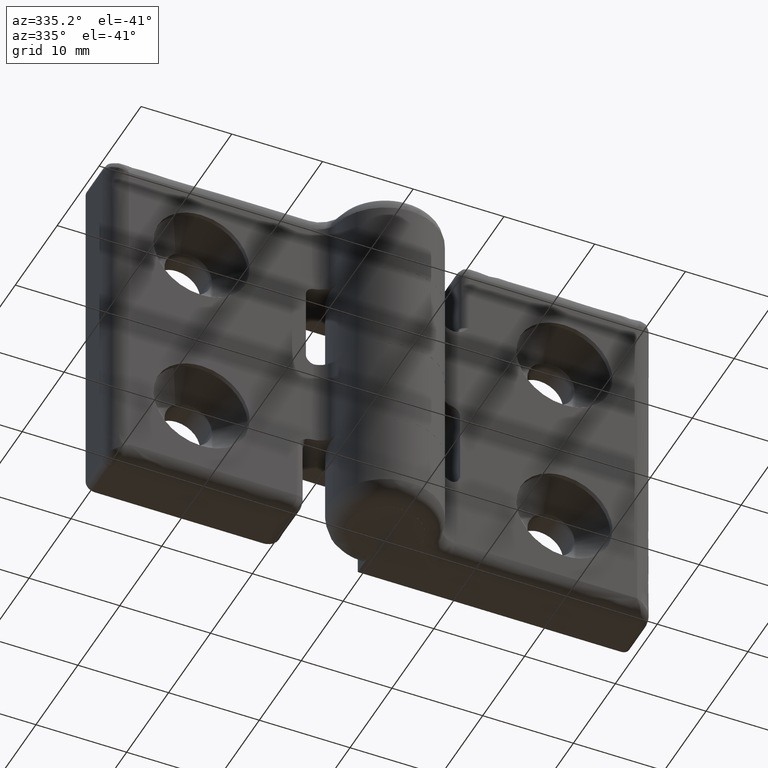
[diagram: clean part render]
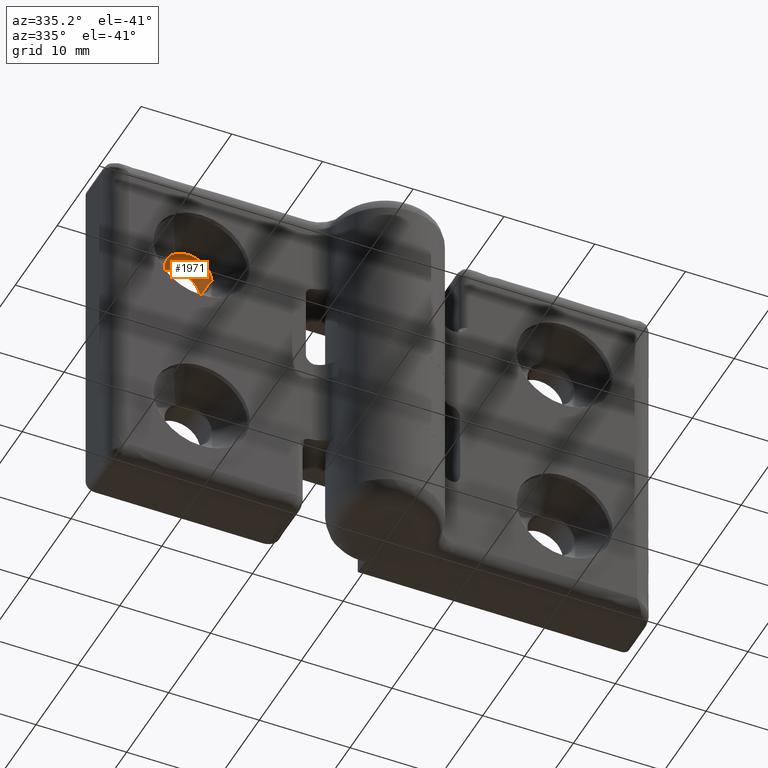
[diagram: same view with one face highlighted and labeled with its STEP entity id]
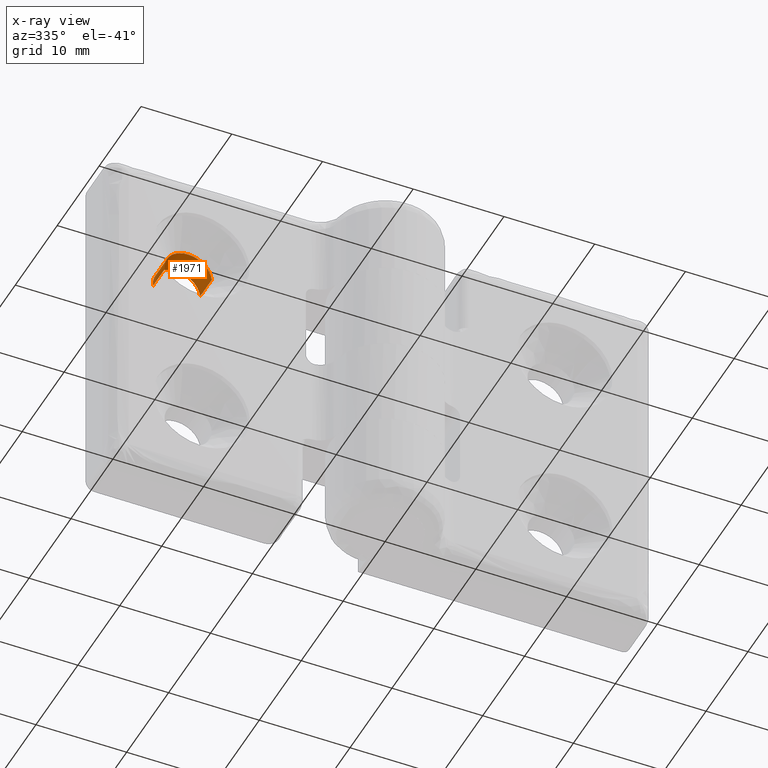
[diagram: x-ray of the same camera — body ghosted, the highlighted face saturated]
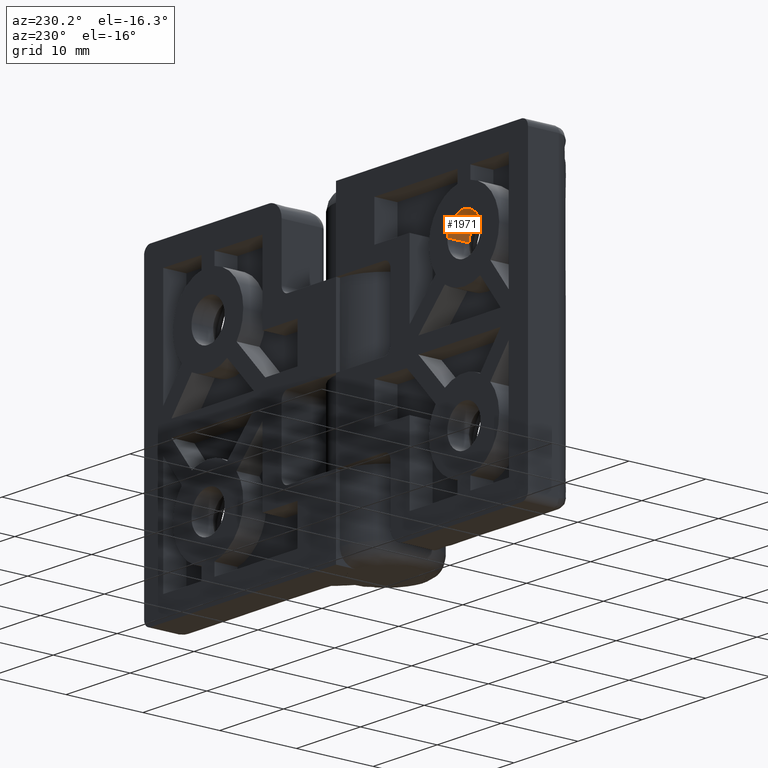
[diagram: same view with one face highlighted and labeled with its STEP entity id]
A machine part, auxiliary view. The second image highlights one B-rep face of the part: STEP entity #1971.
The next image is the same camera in x-ray: the body ghosted, the highlighted face saturated — about 2% of this face is hidden behind the body in this view.
A second angle (auxiliary view) of the same face is appended — the face is thin or edge-on in the first view.
In plain terms, the highlighted face is a freeform B-spline surface patch.
Its self-contained STEP definition (entity closure, byte-faithful):
#1760=CARTESIAN_POINT('',(22.581824768541040,3.700000000000000,10.306889010039709));
#1761=VERTEX_POINT('',#1760);
#1762=CARTESIAN_POINT('',(21.398412098820749,3.699999967056061,7.808095856648015));
#1763=VERTEX_POINT('',#1762);
#1764=CARTESIAN_POINT('',(22.581824768541036,3.700000000000000,10.306889010039708));
#1765=CARTESIAN_POINT('',(22.600000000000001,3.700000000000001,10.153982711027501));
#1766=CARTESIAN_POINT('',(22.600000000000001,3.700000000000000,9.999999999894300));
#1767=CARTESIAN_POINT('',(22.599999999999994,3.700000000000000,8.574696522242345));
#1768=CARTESIAN_POINT('',(21.398412098820749,3.699999967056061,7.808095856648015));
#1776=(BOUNDED_CURVE()B_SPLINE_CURVE(2,(#1764,#1765,#1766,#1767,#1768),.UNSPECIFIED.,.F.,.U.)B_SPLINE_CURVE_WITH_KNOTS((3,2,3),(0.229562473510691,0.250000000000000,0.407950110100083),.UNSPECIFIED.)CURVE()GEOMETRIC_REPRESENTATION_ITEM()RATIONAL_B_SPLINE_CURVE((0.956026754178177,0.976055948327844,1.0,0.814949935363390,0.863729295393820))REPRESENTATION_ITEM(''));
#1777=EDGE_CURVE('',#1761,#1763,#1776,.T.);
#1787=CARTESIAN_POINT('',(17.408014932290349,3.699999999991059,9.796006350932700));
#1788=VERTEX_POINT('',#1787);
#1794=CARTESIAN_POINT('',(17.404849344040350,3.700000000000054,9.841276741159071));
#1795=VERTEX_POINT('',#1794);
#1796=CARTESIAN_POINT('',(17.408014932290342,3.699999999991059,9.796006350932700));
#1797=CARTESIAN_POINT('',(17.406234590975430,3.699999999999999,9.818627732278889));
#1798=CARTESIAN_POINT('',(17.404849344040358,3.700000000000054,9.841276741159071));
#1806=(BOUNDED_CURVE()B_SPLINE_CURVE(2,(#1796,#1797,#1798),.UNSPECIFIED.,.F.,.U.)B_SPLINE_CURVE_WITH_KNOTS((3,3),(0.736331300623706,0.739333157986834),.UNSPECIFIED.)CURVE()GEOMETRIC_REPRESENTATION_ITEM()RATIONAL_B_SPLINE_CURVE((0.969723356152907,0.972855679807942,0.976072461192070))REPRESENTATION_ITEM(''));
#1807=EDGE_CURVE('',#1788,#1795,#1806,.T.);
#1864=CARTESIAN_POINT('',(20.0,3.700000000000000,7.399999999894300));
#1865=VERTEX_POINT('',#1864);
#1866=CARTESIAN_POINT('',(21.398412098820753,3.699999967056061,7.808095856648015));
#1867=CARTESIAN_POINT('',(20.758752967338133,3.700000000000000,7.399999999894301));
#1868=CARTESIAN_POINT('',(20.0,3.700000000000000,7.399999999894300));
#1876=(BOUNDED_CURVE()B_SPLINE_CURVE(2,(#1866,#1867,#1868),.UNSPECIFIED.,.F.,.U.)B_SPLINE_CURVE_WITH_KNOTS((3,3),(0.407950110100082,0.500000000000000),.UNSPECIFIED.)CURVE()GEOMETRIC_REPRESENTATION_ITEM()RATIONAL_B_SPLINE_CURVE((0.863729295393820,0.892156845823157,1.0))REPRESENTATION_ITEM(''));
#1877=EDGE_CURVE('',#1763,#1865,#1876,.T.);
#1879=CARTESIAN_POINT('',(20.0,3.700000000000000,7.399999999894300));
#1880=CARTESIAN_POINT('',(17.596584721816079,3.700000000000000,7.399999999894302));
#1881=CARTESIAN_POINT('',(17.408014932290342,3.699999999991059,9.796006350932700));
#1889=(BOUNDED_CURVE()B_SPLINE_CURVE(2,(#1879,#1880,#1881),.UNSPECIFIED.,.F.,.U.)B_SPLINE_CURVE_WITH_KNOTS((3,3),(0.500000000000000,0.736331300623707),.UNSPECIFIED.)CURVE()GEOMETRIC_REPRESENTATION_ITEM()RATIONAL_B_SPLINE_CURVE((1.0,0.723120658615812,0.969723356152908))REPRESENTATION_ITEM(''));
#1890=EDGE_CURVE('',#1865,#1788,#1889,.T.);
#1899=CARTESIAN_POINT('',(22.581824768545538,3.630000000000000,10.306889010001871));
#1900=CARTESIAN_POINT('',(22.590607800166371,3.629999999999999,10.232998294353045));
#1901=CARTESIAN_POINT('',(22.595150475896862,3.629999999999999,10.158726202684930));
#1902=CARTESIAN_POINT('',(22.753876678687487,3.629999999999999,7.563575726788075));
#1903=CARTESIAN_POINT('',(20.158726202790628,3.629999999999999,7.404849523997447));
#1904=CARTESIAN_POINT('',(17.563575726893767,3.629999999999999,7.246123321206818));
#1905=CARTESIAN_POINT('',(17.404849524103149,3.629999999999999,9.841273797103671));
#1906=CARTESIAN_POINT('',(22.581824768545538,6.571750000000002,10.306889010001871));
#1907=CARTESIAN_POINT('',(22.590607800166371,6.571750000000002,10.232998294353045));
#1908=CARTESIAN_POINT('',(22.595150475896862,6.571750000000002,10.158726202684930));
#1909=CARTESIAN_POINT('',(22.753876678687487,6.571750000000002,7.563575726788075));
#1910=CARTESIAN_POINT('',(20.158726202790628,6.571750000000002,7.404849523997447));
#1911=CARTESIAN_POINT('',(17.563575726893767,6.571750000000002,7.246123321206818));
#1912=CARTESIAN_POINT('',(17.404849524103149,6.571750000000002,9.841273797103671));
#1920=(BOUNDED_SURFACE()B_SPLINE_SURFACE(2,1,((#1899,#1906),(#1900,#1907),(#1901,#1908),(#1902,#1909),(#1903,#1910),(#1904,#1911),(#1905,#1912)),.UNSPECIFIED.,.F.,.F.,.U.)B_SPLINE_SURFACE_WITH_KNOTS((3,2,2,3),(2,2),(0.0,0.172312841947208,4.480133890627397,8.787954939307587),(0.0,2.941750000000002),.UNSPECIFIED.)GEOMETRIC_REPRESENTATION_ITEM()RATIONAL_B_SPLINE_SURFACE(((0.977505800795127,0.977505800795127),(0.988284271247462,0.988284271247462),(1.0,1.0),(0.707106781186548,0.707106781186548),(1.0,1.0),(0.707106781186548,0.707106781186548),(1.0,1.0)))REPRESENTATION_ITEM('')SURFACE());
#1921=ORIENTED_EDGE('',*,*,#1777,.F.);
#1922=CARTESIAN_POINT('',(22.581824768541040,6.500000000000002,10.306889010039709));
#1923=VERTEX_POINT('',#1922);
#1924=CARTESIAN_POINT('',(22.581824768541040,3.700000000000000,10.306889010039709));
#1925=CARTESIAN_POINT('',(22.581824768541040,6.500000000000002,10.306889010039709));
#1926=QUASI_UNIFORM_CURVE('',1,(#1924,#1925),.UNSPECIFIED.,.F.,.U.);
#1927=EDGE_CURVE('',#1761,#1923,#1926,.T.);
#1928=ORIENTED_EDGE('',*,*,#1927,.T.);
#1929=CARTESIAN_POINT('',(20.0,6.500000000000000,7.399999999894300));
#1930=VERTEX_POINT('',#1929);
#1931=CARTESIAN_POINT('',(22.581824768541033,6.500000000000002,10.306889010039708));
#1932=CARTESIAN_POINT('',(22.599999999999998,6.499999999999999,10.153982711027501));
#1933=CARTESIAN_POINT('',(22.600000000000001,6.500000000000000,9.999999999894300));
#1934=CARTESIAN_POINT('',(22.599999999999991,6.500000000000001,7.399999999894301));
#1935=CARTESIAN_POINT('',(20.0,6.500000000000000,7.399999999894300));
#1943=(BOUNDED_CURVE()B_SPLINE_CURVE(2,(#1931,#1932,#1933,#1934,#1935),.UNSPECIFIED.,.F.,.U.)B_SPLINE_CURVE_WITH_KNOTS((3,2,3),(0.229562473510691,0.250000000000000,0.500000000000000),.UNSPECIFIED.)CURVE()GEOMETRIC_REPRESENTATION_ITEM()RATIONAL_B_SPLINE_CURVE((0.956026754178177,0.976055948327844,1.0,0.707106781186548,1.0))REPRESENTATION_ITEM(''));
#1944=EDGE_CURVE('',#1923,#1930,#1943,.T.);
#1945=ORIENTED_EDGE('',*,*,#1944,.T.);
#1946=CARTESIAN_POINT('',(17.404849346204220,6.500000000000000,9.841276705778814));
#1947=VERTEX_POINT('',#1946);
#1948=CARTESIAN_POINT('',(20.0,6.500000000000000,7.399999999894300));
#1949=CARTESIAN_POINT('',(17.554161479599795,6.500000000000003,7.399999999894302));
#1950=CARTESIAN_POINT('',(17.404849346204220,6.500000000000000,9.841276705778814));
#1958=(BOUNDED_CURVE()B_SPLINE_CURVE(2,(#1948,#1949,#1950),.UNSPECIFIED.,.F.,.U.)B_SPLINE_CURVE_WITH_KNOTS((3,3),(0.500000000000000,0.739333155634465),.UNSPECIFIED.)CURVE()GEOMETRIC_REPRESENTATION_ITEM()RATIONAL_B_SPLINE_CURVE((1.0,0.719603766709762,0.976072456150487))REPRESENTATION_ITEM(''));
#1959=EDGE_CURVE('',#1930,#1947,#1958,.T.);
#1960=ORIENTED_EDGE('',*,*,#1959,.T.);
#1961=CARTESIAN_POINT('',(17.404849344040350,3.700000000000054,9.841276741159071));
#1962=CARTESIAN_POINT('',(17.404849346204220,6.500000000000000,9.841276705778814));
#1963=QUASI_UNIFORM_CURVE('',1,(#1961,#1962),.UNSPECIFIED.,.F.,.U.);
#1964=EDGE_CURVE('',#1795,#1947,#1963,.T.);
#1965=ORIENTED_EDGE('',*,*,#1964,.F.);
#1966=ORIENTED_EDGE('',*,*,#1807,.F.);
#1967=ORIENTED_EDGE('',*,*,#1890,.F.);
#1968=ORIENTED_EDGE('',*,*,#1877,.F.);
#1969=EDGE_LOOP('',(#1921,#1928,#1945,#1960,#1965,#1966,#1967,#1968));
#1970=FACE_OUTER_BOUND('',#1969,.T.);
#1971=ADVANCED_FACE('',(#1970),#1920,.F.);